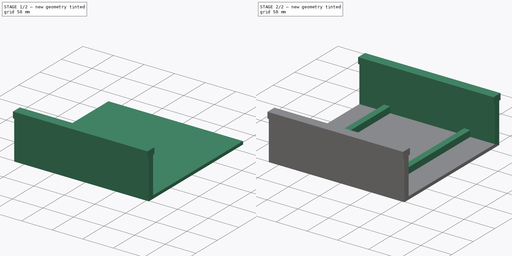
[diagram: build sequence overview — one tinted view per stage of 2, left to right]
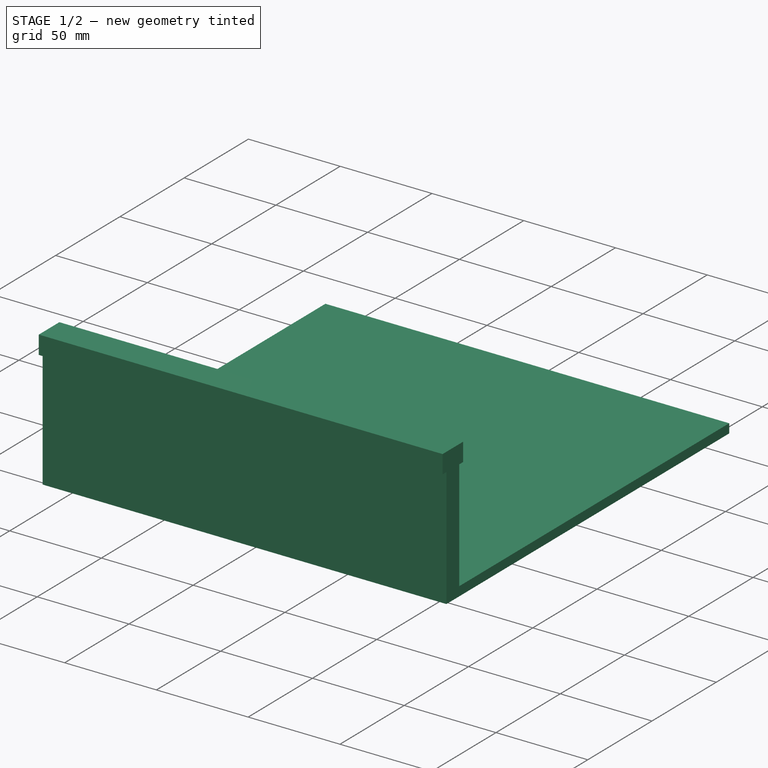
[diagram: stage 1 of 2 — iso view after this stage's code; geometry added in this stage tinted green]
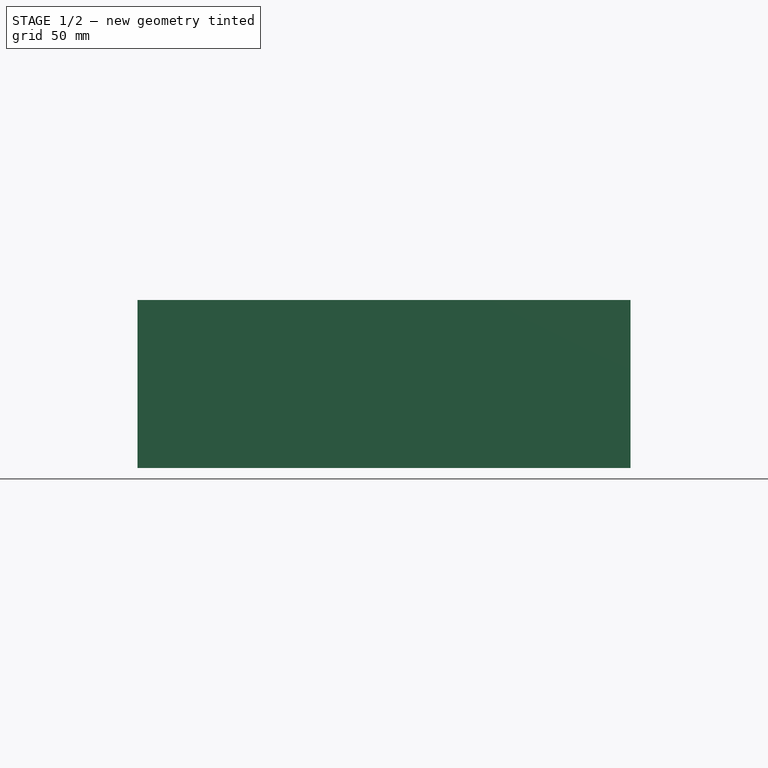
[diagram: stage 1 of 2 — front view after this stage's code; geometry added in this stage tinted green]
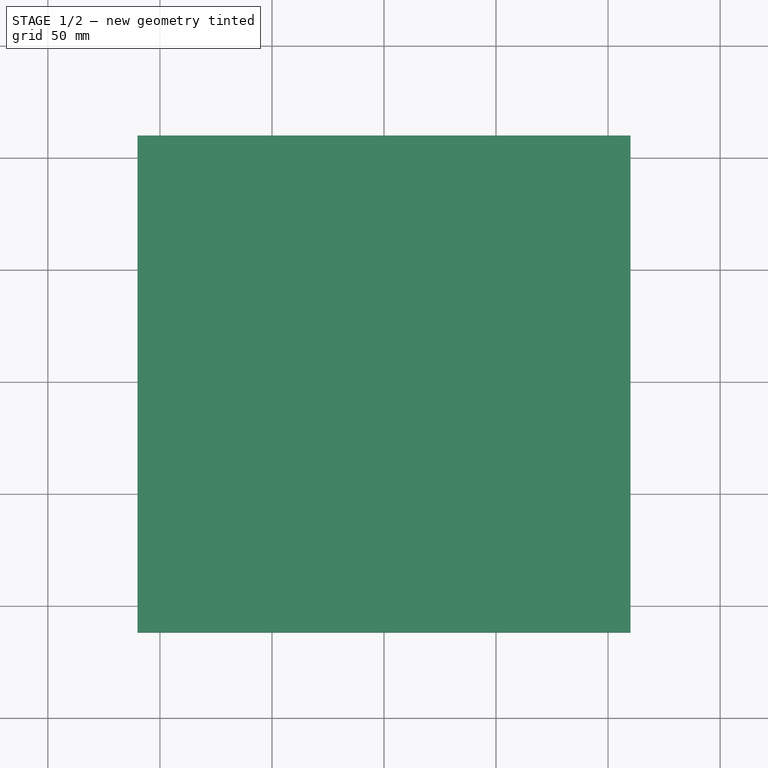
[diagram: stage 1 of 2 — top view after this stage's code; geometry added in this stage tinted green]
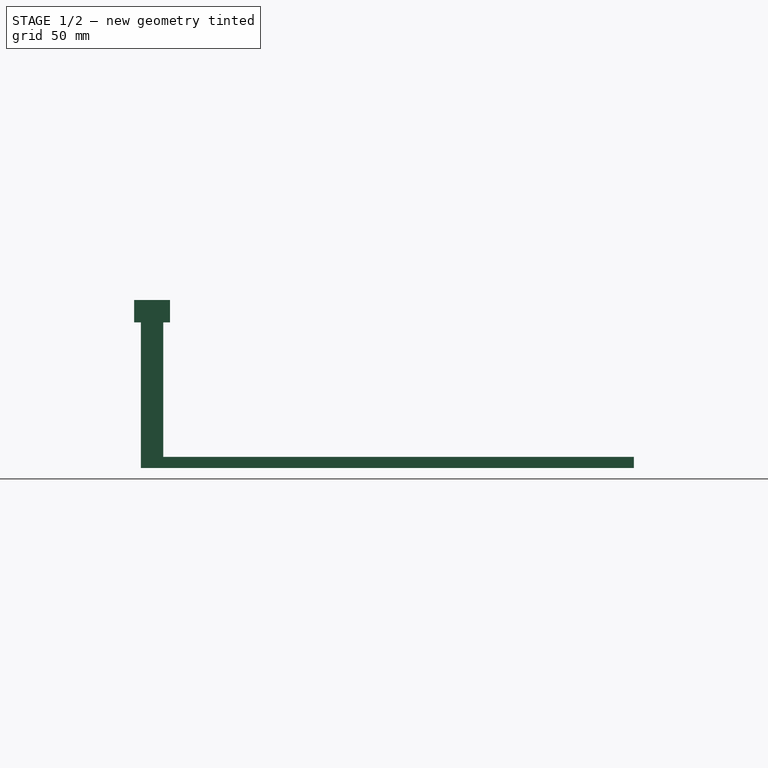
[diagram: stage 1 of 2 — right view after this stage's code; geometry added in this stage tinted green]
FCSTD DOCUMENT  (FreeCAD 1.0R39319 (Git))
Label: Adam
License: All rights reserved
LicenseURL: http://en.wikipedia.org/wiki/All_rights_reserved
objects: Sketcher::SketchObject×4, PartDesign::Pad×3, PartDesign::Body×2, PartDesign::LinearPattern×1, Spreadsheet::Sheet×1
note: 21 computed .brp shape members not serialized (recipe doc carries the construction recipe); baked Part::Feature solids carry a one-line shape summary decoded from their .brp

FEATURE [Sketcher::SketchObject] Sketch
  ArcFitTolerance = 1e-06
  AttachmentSupport = -> [XY_Plane]
  FullyConstrained = true
  MakeInternals = false
  MapMode = 5
  expr: Constraints[10] = <<Spreadsheet>>.plate_width
  sketch-geometry (5):
    g0: LineSegment StartX=-110 StartY=-110 StartZ=0 EndX=110 EndY=-110 EndZ=0
    g1: LineSegment StartX=110 StartY=-110 StartZ=0 EndX=110 EndY=110 EndZ=0
    g2: LineSegment StartX=110 StartY=110 StartZ=0 EndX=-110 EndY=110 EndZ=0
    g3: LineSegment StartX=-110 StartY=110 StartZ=0 EndX=-110 EndY=-110 EndZ=0
    g4: GeomPoint [constr] X=0 Y=0 Z=0
  constraints (12):
    c: Coincident(g0,g1)
    c: Coincident(g1,g2)
    c: Coincident(g2,g3)
    c: Coincident(g3,g0)
    c: Horizontal(g0)
    c: Horizontal(g2)
    c: Vertical(g1)
    c: Vertical(g3)
    c: Symmetric(g2,g0,g4)
    c: Distance(g1,g3) = 220  'plate_length'
    c: Distance(g0,g2) = 220
    c: Coincident(g4,g-1)
FEATURE [PartDesign::Pad] Pad  label="main_plate"
  Direction = (0,0,1)
  Length = 5
  Length2 = 10
  Profile = -> Sketch
  ReferenceAxis = -> Sketch [N_Axis]
  Refine = true
  Suppressed = false
  Type = 0
FEATURE [Sketcher::SketchObject] Sketch001
  ArcFitTolerance = 1e-06
  AttachmentSupport = -> [Pad]
  ExternalGeometry = -> [Pad]
  FullyConstrained = true
  MakeInternals = false
  MapMode = 5
  Placement = pos=(110,0,0) rot=(0.57735,0.57735,0.57735;2.0944rad)
  expr: Constraints[17] = <<Spreadsheet>>.rail_width
  sketch-geometry (8):
    g0: LineSegment StartX=-110 StartY=5 StartZ=0 EndX=-110 EndY=65 EndZ=0
    g1: LineSegment StartX=-110 StartY=65 StartZ=0 EndX=-113 EndY=65 EndZ=0
    g2: LineSegment StartX=-113 StartY=65 StartZ=0 EndX=-113 EndY=75 EndZ=0
    g3: LineSegment StartX=-113 StartY=75 StartZ=0 EndX=-97 EndY=75 EndZ=0
    g4: LineSegment StartX=-97 StartY=75 StartZ=0 EndX=-97 EndY=65 EndZ=0
    g5: LineSegment StartX=-97 StartY=65 StartZ=0 EndX=-100 EndY=65 EndZ=0
    g6: LineSegment StartX=-100 StartY=65 StartZ=0 EndX=-100 EndY=5 EndZ=0
    g7: LineSegment StartX=-100 StartY=5 StartZ=0 EndX=-110 EndY=5 EndZ=0
  constraints (22):
    c: Coincident(g-4,g0)
    c: Vertical(g0)
    c: Coincident(g0,g1)
    c: Horizontal(g1)
    c: Coincident(g1,g2)
    c: Coincident(g2,g3)
    c: Horizontal(g3)
    c: Coincident(g3,g4)
    c: Coincident(g4,g5)
    c: Coincident(g5,g6)
    c: PointOnObject(g6,g-4)
    c: Vertical(g6)
    c: Coincident(g6,g7)
    c: Coincident(g7,g0)
    c: Vertical(g2)
    c: Vertical(g4)
    c: Tangent(g1,g5)
    c: DistanceX(g0,g5) = 10
    c: DistanceX(g1,g1) = 3
    c: DistanceX(g5,g5) = 3
    c: DistanceY(g0,g0) = 60
    c: DistanceY(g2,g2) = 10
FEATURE [PartDesign::Pad] Pad001  label="rail"
  BaseFeature = -> Pad
  Direction = (1,0,0)
  Length = 220
  Length2 = 10
  Profile = -> Sketch001
  ReferenceAxis = -> Sketch001 [N_Axis]
  Refine = true
  Reversed = true
  Suppressed = false
  Type = 0
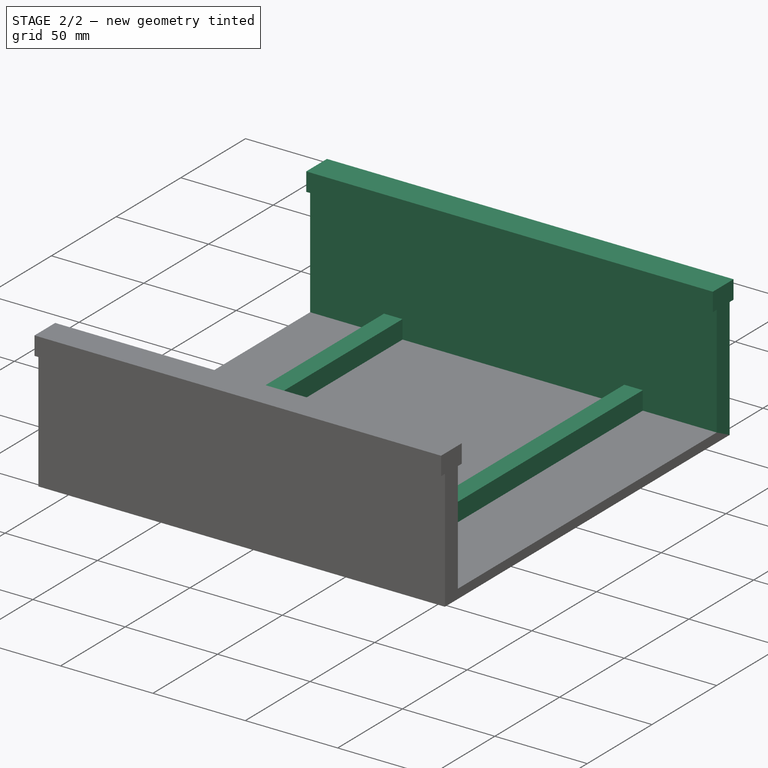
[diagram: stage 2 of 2 — iso view after this stage's code; geometry added in this stage tinted green]
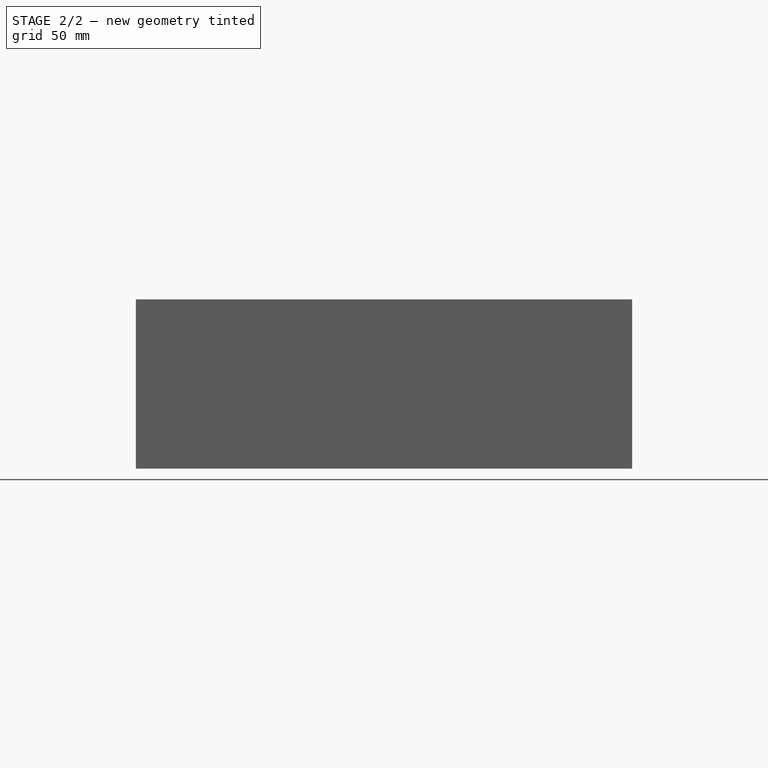
[diagram: stage 2 of 2 — front view after this stage's code; geometry added in this stage tinted green]
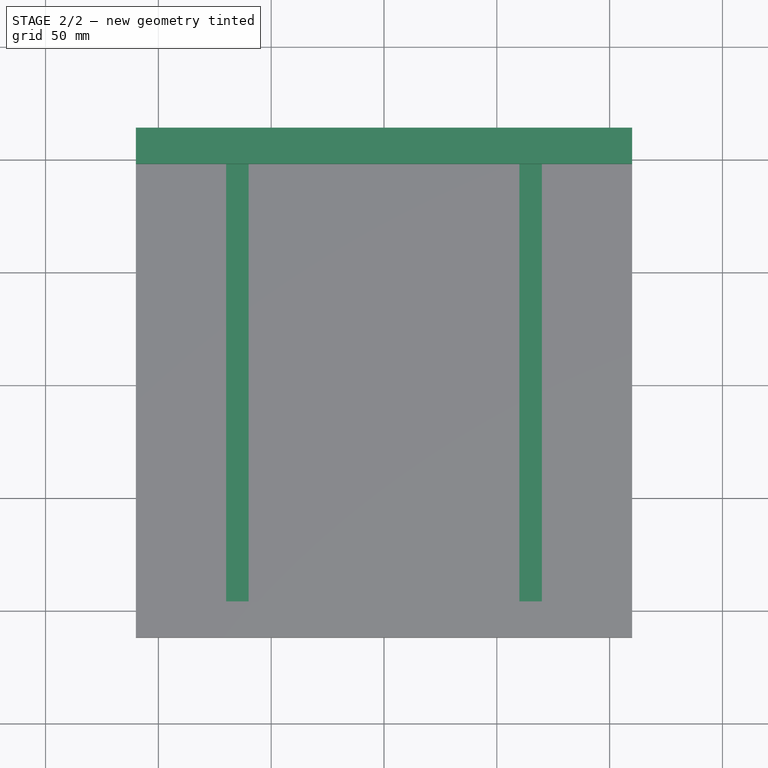
[diagram: stage 2 of 2 — top view after this stage's code; geometry added in this stage tinted green]
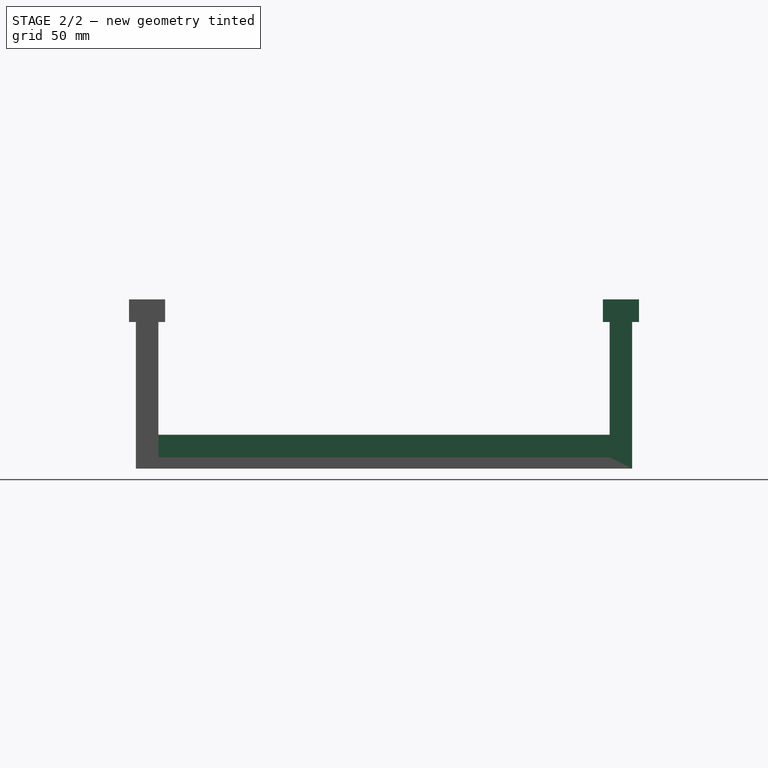
[diagram: stage 2 of 2 — right view after this stage's code; geometry added in this stage tinted green]
FEATURE [PartDesign::LinearPattern] LinearPattern
  BaseFeature = -> Pad001
  Direction = -> Sketch001 [H_Axis]
  Length = 210
  Mode = 0
  Occurrences = 2
  Offset = 210
  Originals = -> [Pad001]
  Refine = true
  Suppressed = false
  TransformMode = 0
  expr: Length = <<Spreadsheet>>.plate_width - <<Spreadsheet>>.rail_width
FEATURE [Sketcher::SketchObject] Sketch003
  ArcFitTolerance = 1e-06
  AttachmentSupport = -> [LinearPattern]
  FullyConstrained = true
  MakeInternals = false
  MapMode = 5
  Placement = pos=(0,0,5) rot=(0,0,1;0rad)
  expr: Constraints[19] = <<Spreadsheet>>.plate_width - 2 * <<Spreadsheet>>.rail_width
  sketch-geometry (8):
    g0: LineSegment StartX=-70 StartY=100 StartZ=0 EndX=-70 EndY=-100 EndZ=0
    g1: LineSegment StartX=-70 StartY=-100 StartZ=0 EndX=-60 EndY=-100 EndZ=0
    g2: LineSegment StartX=-60 StartY=-100 StartZ=0 EndX=-60 EndY=100 EndZ=0
    g3: LineSegment StartX=-60 StartY=100 StartZ=0 EndX=-70 EndY=100 EndZ=0
    g4: LineSegment StartX=60 StartY=100 StartZ=0 EndX=60 EndY=-100 EndZ=0
    g5: LineSegment StartX=60 StartY=-100 StartZ=0 EndX=70 EndY=-100 EndZ=0
    g6: LineSegment StartX=70 StartY=-100 StartZ=0 EndX=70 EndY=100 EndZ=0
    g7: LineSegment StartX=70 StartY=100 StartZ=0 EndX=60 EndY=100 EndZ=0
  constraints (20):
    c: Coincident(g0,g1)
    c: Coincident(g1,g2)
    c: Coincident(g2,g3)
    c: Coincident(g3,g0)
    c: Vertical(g0)
    c: Horizontal(g1)
    c: Coincident(g4,g5)
    c: Coincident(g5,g6)
    c: Coincident(g6,g7)
    c: Coincident(g7,g4)
    c: Vertical(g4)
    c: Vertical(g6)
    c: Tangent(g3,g7)
    c: Tangent(g1,g5)
    c: DistanceX(g2,g-1) = 60
    c: Symmetric(g2,g4,g-2)
    c: Symmetric(g0,g6,g-2)
    c: DistanceX(g3,g3) = 10
    c: Symmetric(g2,g1,g-1)
    c: DistanceY(g0,g0) = 200
FEATURE [PartDesign::Pad] Pad003
  BaseFeature = -> LinearPattern
  Direction = (0,0,1)
  Length = 10
  Length2 = 10
  Profile = -> Sketch003
  ReferenceAxis = -> Sketch003 [N_Axis]
  Refine = true
  Suppressed = false
  Type = 0
FEATURE [PartDesign::Body] Body  label="Baza"
  AllowCompound = true
  Group = -> [Sketch,Pad,Sketch001,Pad001,LinearPattern,Sketch003,Pad003]
  Origin = -> Origin
  Tip = -> Pad003
FEATURE [Spreadsheet::Sheet] Spreadsheet
  cells = A1='width; B1(plate_width)=220; A2='heigth; B2(plate_height)=5; A3='lentgh; B3(plate_length)=220; A4='rail width; B4(rail_width)=10
FEATURE [Sketcher::SketchObject] Sketch004
  ArcFitTolerance = 1e-06
  AttachmentSupport = -> [YZ_Plane001]
  FullyConstrained = true
  MakeInternals = false
  MapMode = 5
  Placement = pos=(0,0,0) rot=(0.57735,0.57735,0.57735;2.0944rad)
FEATURE [PartDesign::Body] Body001  label="Body"
  AllowCompound = false
  Group = -> [Sketch004]
  Origin = -> Origin001
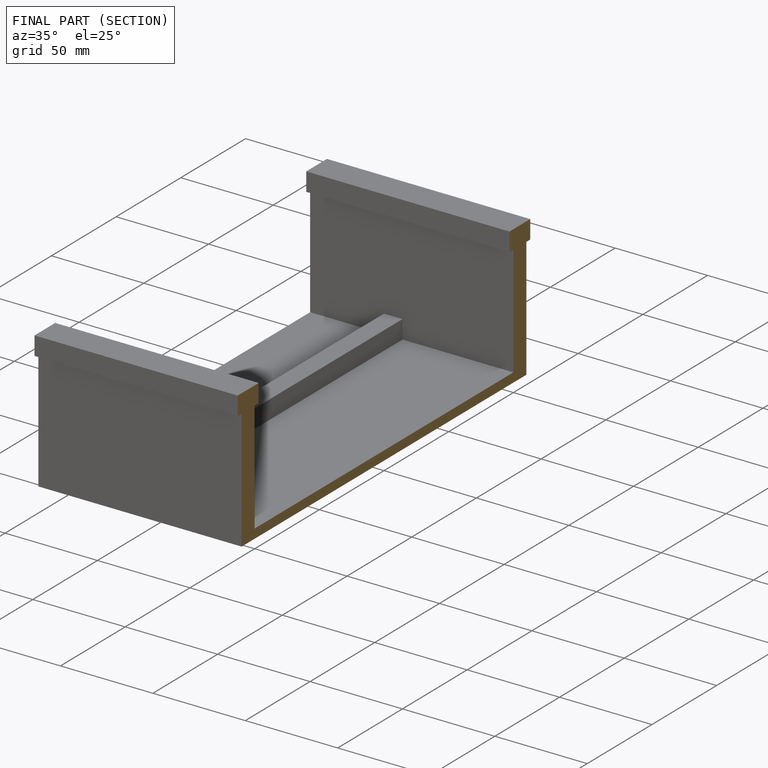
[diagram: finished part — half-section view (interior)]
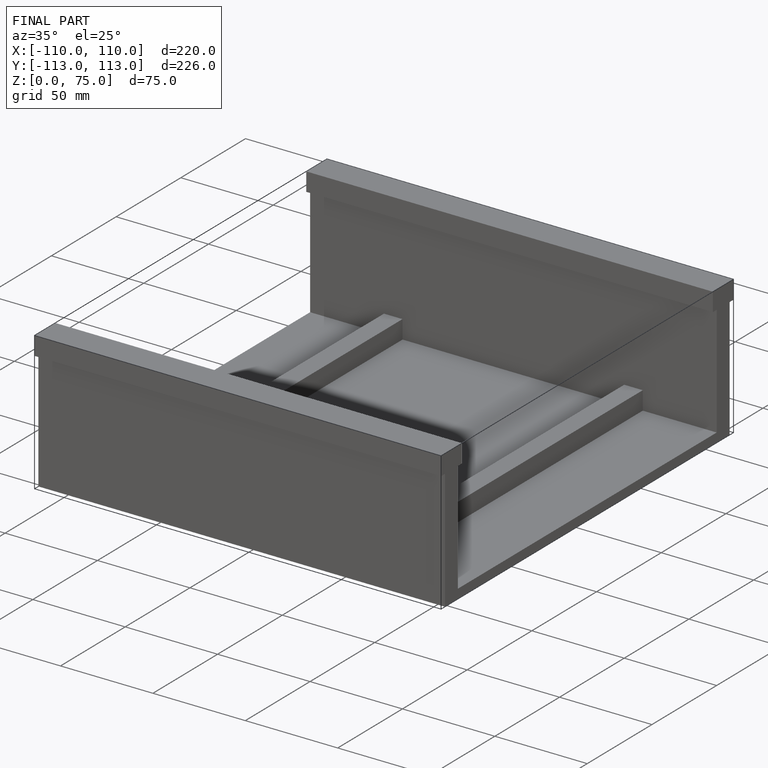
[diagram: finished part — iso view with bounding-box wireframe]
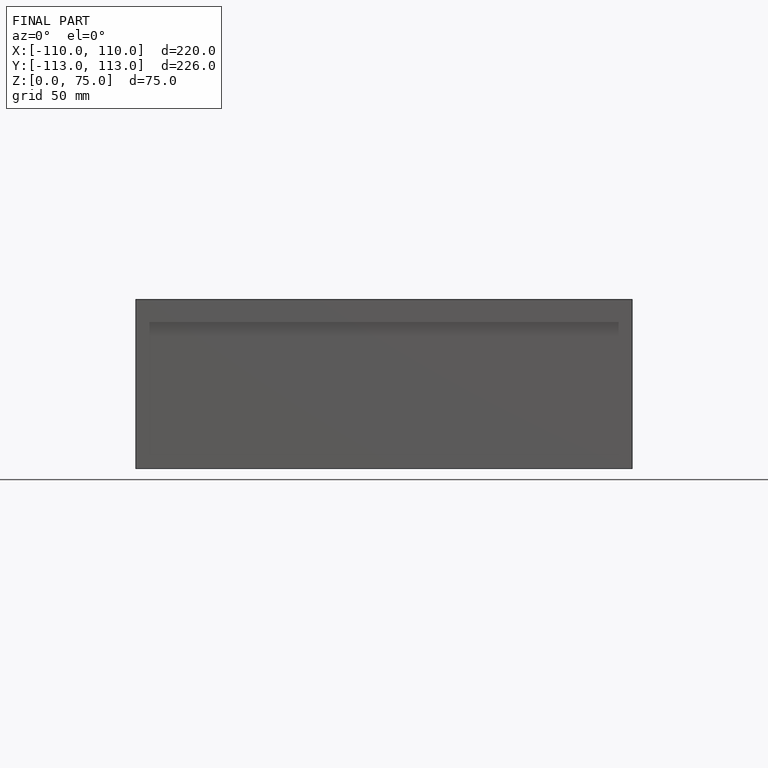
[diagram: finished part — front view with bounding-box wireframe]
